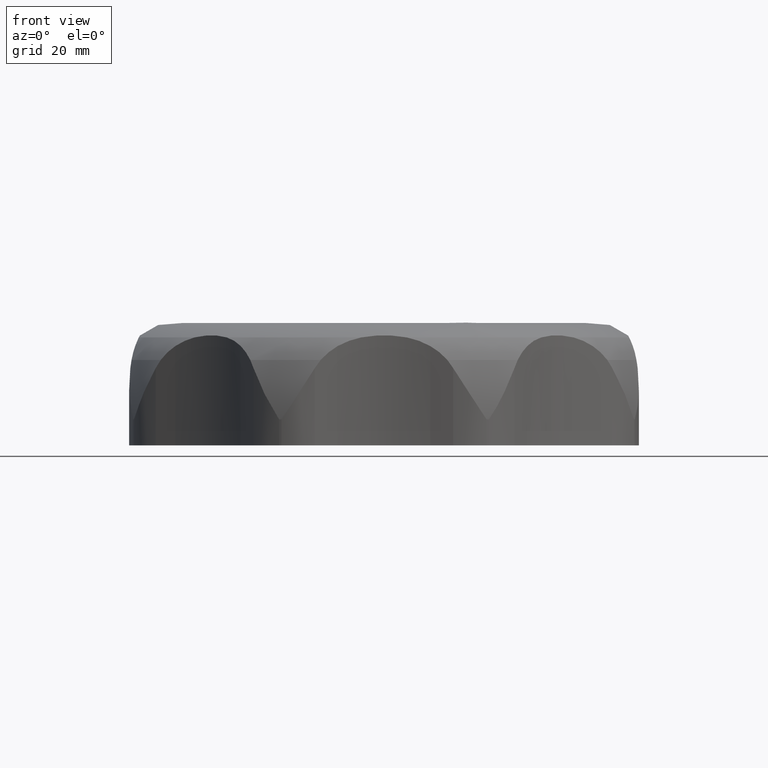
[diagram: clean part render]
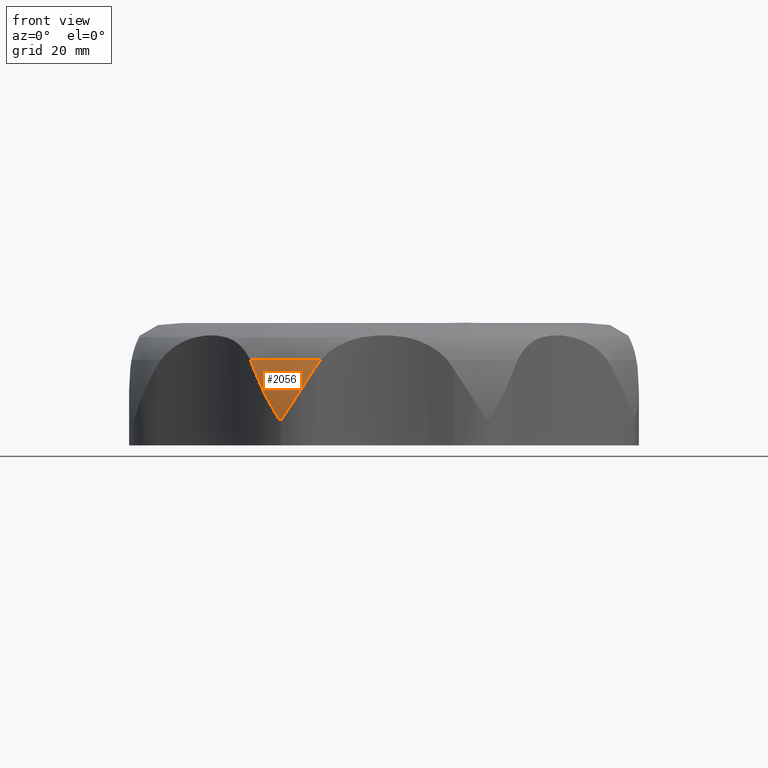
[diagram: same view with one face highlighted and labeled with its STEP entity id]
A machine part, front view. The second image highlights one B-rep face of the part: STEP entity #2056.
In plain terms, the highlighted face is a freeform B-spline surface patch.
Its self-contained STEP definition (entity closure, byte-faithful):
#2056 = ADVANCED_FACE( '', ( #6350 ), #6351, .T. );
#6350 = FACE_OUTER_BOUND( '', #11272, .T. );
#6351 = ( B_SPLINE_SURFACE( 3, 3, ( ( #11274, #11275, #11276, #11277 ), ( #11278, #11279, #11280, #11281 ), ( #11282, #11283, #11284, #11285 ), ( #11286, #11287, #11288, #11289 ) ), .UNSPECIFIED., .F., .F., .F. )B_SPLINE_SURFACE_WITH_KNOTS( ( 4, 4 ), ( 4, 4 ), ( 5.34910763170350, 5.64646665586077 ), ( 0.0222292292235931, 0.338178846627953 ), .UNSPECIFIED. )RATIONAL_B_SPLINE_SURFACE( ( ( 1.00000000000000, 0.992645031382292, 0.992645031382292, 1.00000000000000 ), ( 0.991698605662999, 0.984404693540123, 0.984404693540123, 0.991698605662999 ), ( 0.991698605662999, 0.984404693540123, 0.984404693540123, 0.991698605662999 ), ( 1.00000000000000, 0.992645031382292, 0.992645031382292, 1.00000000000000 ) ) )BOUNDED_SURFACE(  )REPRESENTATION_ITEM( '' )GEOMETRIC_REPRESENTATION_ITEM(  )SURFACE(  ) );
#11272 = EDGE_LOOP( '', ( #30086, #30087, #30088, #30089, #30090, #30091 ) );
#11274 = CARTESIAN_POINT( '', ( -29.6827843334104, -49.3639309143618, 18.9051987331990 ) );
#11275 = CARTESIAN_POINT( '', ( -24.7717339039393, -52.3169706753441, 18.9051987331990 ) );
#11276 = CARTESIAN_POINT( '', ( -19.4774237104494, -54.5099457608978, 18.9051987331990 ) );
#11277 = CARTESIAN_POINT( '', ( -13.9166722089172, -55.8944683822218, 18.9051987331990 ) );
#11278 = CARTESIAN_POINT( '', ( -30.4512240267274, -50.6418839361091, 14.6651041067951 ) );
#11279 = CARTESIAN_POINT( '', ( -25.4130343759657, -53.6713731616292, 14.6651041067951 ) );
#11280 = CARTESIAN_POINT( '', ( -19.9816629804095, -55.9211208559539, 14.6651041067951 ) );
#11281 = CARTESIAN_POINT( '', ( -14.2769525385551, -57.3414865480145, 14.6651041067951 ) );
#11282 = CARTESIAN_POINT( '', ( -30.8663544938579, -51.3322663298121, 10.2432148301802 ) );
#11283 = CARTESIAN_POINT( '', ( -25.7594810351357, -54.4030554806244, 10.2432148301802 ) );
#11284 = CARTESIAN_POINT( '', ( -20.2540657278268, -56.6834731674082, 10.2432148301802 ) );
#11285 = CARTESIAN_POINT( '', ( -14.4715850423693, -58.1232021885988, 10.2432148301802 ) );
#11286 = CARTESIAN_POINT( '', ( -30.9178372496748, -51.4178846859907, 5.74965444315344 ) );
#11287 = CARTESIAN_POINT( '', ( -25.8024459104457, -54.4937956819515, 5.74965444315344 ) );
#11288 = CARTESIAN_POINT( '', ( -20.2878479848269, -56.7780169337773, 5.74965444315344 ) );
#11289 = CARTESIAN_POINT( '', ( -14.4957225568649, -58.2201473145990, 5.74965444315344 ) );
#30086 = ORIENTED_EDGE( '', *, *, #37198, .F. );
#30087 = ORIENTED_EDGE( '', *, *, #37196, .F. );
#30088 = ORIENTED_EDGE( '', *, *, #37203, .T. );
#30089 = ORIENTED_EDGE( '', *, *, #37205, .F. );
#30090 = ORIENTED_EDGE( '', *, *, #37257, .F. );
#30091 = ORIENTED_EDGE( '', *, *, #37206, .F. );
#37196 = EDGE_CURVE( '', #48407, #48405, #48409, .T. );
#37198 = EDGE_CURVE( '', #48405, #48412, #48413, .T. );
#37203 = EDGE_CURVE( '', #48407, #48417, #48419, .T. );
#37205 = EDGE_CURVE( '', #48420, #48417, #48422, .T. );
#37206 = EDGE_CURVE( '', #48412, #48423, #48424, .T. );
#37257 = EDGE_CURVE( '', #48423, #48420, #48502, .T. );
#48405 = VERTEX_POINT( '', #75079 );
#48407 = VERTEX_POINT( '', #75082 );
#48409 = B_SPLINE_CURVE_WITH_KNOTS( '', 3, ( #75085, #75086, #75087, #75088, #75089, #75090, #75091, #75092, #75093, #75094, #75095, #75096, #75097, #75098 ), .UNSPECIFIED., .F., .F., ( 4, 2, 2, 2, 2, 2, 4 ), ( 3.12551144157876E-007, 0.000426683360056060, 0.000853054168967963, 0.00170579578679177, 0.00341127902243937, 0.00682224549373458, 0.0136441784363250 ), .UNSPECIFIED. );
#48412 = VERTEX_POINT( '', #75102 );
#48413 = B_SPLINE_CURVE_WITH_KNOTS( '', 3, ( #75103, #75104, #75105, #75106 ), .UNSPECIFIED., .F., .F., ( 4, 4 ), ( 3.68082554245148E-007, 0.00221763291842306 ), .UNSPECIFIED. );
#48417 = VERTEX_POINT( '', #75125 );
#48419 = CIRCLE( '', #75128, 59.9975960000000 );
#48420 = VERTEX_POINT( '', #75129 );
#48422 = B_SPLINE_CURVE_WITH_KNOTS( '', 3, ( #75132, #75133, #75134, #75135, #75136, #75137, #75138, #75139, #75140, #75141, #75142, #75143, #75144, #75145 ), .UNSPECIFIED., .F., .F., ( 4, 2, 2, 2, 2, 2, 4 ), ( 3.66671776299814E-007, 0.00680483717724937, 0.0102070724299859, 0.0119081900563542, 0.0127587488695383, 0.0131840282761304, 0.0136093076827224 ), .UNSPECIFIED. );
#48423 = VERTEX_POINT( '', #75146 );
#48424 = CIRCLE( '', #75147, 57.6009145856352 );
#48502 = B_SPLINE_CURVE_WITH_KNOTS( '', 3, ( #75426, #75427, #75428, #75429 ), .UNSPECIFIED., .F., .F., ( 4, 4 ), ( 2.56028141075159E-007, 0.00221752086403909 ), .UNSPECIFIED. );
#75079 = CARTESIAN_POINT( '', ( -28.8828348418969, -50.5118820505311, 17.1142435614363 ) );
#75082 = CARTESIAN_POINT( '', ( -23.2207867404174, -55.3218454946621, 5.74965444315344 ) );
#75085 = CARTESIAN_POINT( '', ( -23.2207867404191, -55.3218454946615, 5.74965444315217 ) );
#75086 = CARTESIAN_POINT( '', ( -23.3295441090287, -55.2740024693811, 5.84061401074822 ) );
#75087 = CARTESIAN_POINT( '', ( -23.4152633677957, -55.2347377492459, 5.94842263200228 ) );
#75088 = CARTESIAN_POINT( '', ( -23.5809825747188, -55.1571536673895, 6.16781642026173 ) );
#75089 = CARTESIAN_POINT( '', ( -23.6584771019797, -55.1198356431650, 6.28125742140223 ) );
#75090 = CARTESIAN_POINT( '', ( -23.8847410079456, -55.0083022965663, 6.62547899576394 ) );
#75091 = CARTESIAN_POINT( '', ( -24.0270711017191, -54.9345943266289, 6.86032041777973 ) );
#75092 = CARTESIAN_POINT( '', ( -24.4453737252470, -54.7085480085220, 7.56839975020135 ) );
#75093 = CARTESIAN_POINT( '', ( -24.7115504405062, -54.5517382014736, 8.04601633246108 ) );
#75094 = CARTESIAN_POINT( '', ( -25.4911587274866, -54.0550325957118, 9.48127223376051 ) );
#75095 = CARTESIAN_POINT( '', ( -25.9836967507986, -53.6894239724581, 10.4432154328071 ) );
#75096 = CARTESIAN_POINT( '', ( -27.3769683144545, -52.4947720410533, 13.3127360711706 ) );
#75097 = CARTESIAN_POINT( '', ( -28.1963845466229, -51.5669643224077, 15.2134542894051 ) );
#75098 = CARTESIAN_POINT( '', ( -28.8828348418971, -50.5118820505311, 17.1142435614362 ) );
#75102 = CARTESIAN_POINT( '', ( -29.5957097293314, -49.4161848660820, 18.9051987331990 ) );
#75103 = CARTESIAN_POINT( '', ( -28.8828348418970, -50.5118820505310, 17.1142435614362 ) );
#75104 = CARTESIAN_POINT( '', ( -29.1056081655869, -50.1694768012512, 17.7311056222115 ) );
#75105 = CARTESIAN_POINT( '', ( -29.3434150215651, -49.8039648339609, 18.3278472384696 ) );
#75106 = CARTESIAN_POINT( '', ( -29.5957097293315, -49.4161848660821, 18.9051987331990 ) );
#75125 = CARTESIAN_POINT( '', ( -22.6988763284069, -55.5380278656607, 5.74965444315344 ) );
#75128 = AXIS2_PLACEMENT_3D( '', #79653, #79654, #79655 );
#75129 = CARTESIAN_POINT( '', ( -15.2940459518450, -56.1405427050252, 17.1142435614119 ) );
#75132 = CARTESIAN_POINT( '', ( -15.2940459518450, -56.1405427050255, 17.1142435614118 ) );
#75133 = CARTESIAN_POINT( '', ( -16.5251905176270, -56.4011403322678, 15.2139249482884 ) );
#75134 = CARTESIAN_POINT( '', ( -17.7608212962556, -56.4779007521181, 13.3129759701209 ) );
#75135 = CARTESIAN_POINT( '', ( -19.5916177089900, -56.3373293514738, 10.4420980317901 ) );
#75136 = CARTESIAN_POINT( '', ( -20.1985477185152, -56.2474883756976, 9.47993791987735 ) );
#75137 = CARTESIAN_POINT( '', ( -21.1004741168203, -56.0475364290523, 8.04557915939006 ) );
#75138 = CARTESIAN_POINT( '', ( -21.3994152410939, -55.9702393627767, 7.56821379207193 ) );
#75139 = CARTESIAN_POINT( '', ( -21.8548707345268, -55.8343434582245, 6.86039596760154 ) );
#75140 = CARTESIAN_POINT( '', ( -22.0075867569604, -55.7858362919649, 6.62562355106964 ) );
#75141 = CARTESIAN_POINT( '', ( -22.2464096613311, -55.7047242641009, 6.28144101875560 ) );
#75142 = CARTESIAN_POINT( '', ( -22.3275874692424, -55.6763187575307, 6.16800224754182 ) );
#75143 = CARTESIAN_POINT( '', ( -22.4996449229079, -55.6139940570682, 5.94856636842442 ) );
#75144 = CARTESIAN_POINT( '', ( -22.5880232216294, -55.5811474520019, 5.84071250537862 ) );
#75145 = CARTESIAN_POINT( '', ( -22.6988763283984, -55.5380278656643, 5.74965444314717 ) );
#75146 = CARTESIAN_POINT( '', ( -14.0151923755358, -55.8698464628137, 18.9051987331990 ) );
#75147 = AXIS2_PLACEMENT_3D( '', #79657, #79658, #79659 );
#75426 = CARTESIAN_POINT( '', ( -14.0151923755358, -55.8698464628136, 18.9051987331990 ) );
#75427 = CARTESIAN_POINT( '', ( -14.4677935191563, -55.9656490089912, 18.3278472384620 ) );
#75428 = CARTESIAN_POINT( '', ( -14.8944043503123, -56.0559501591932, 17.7311056221958 ) );
#75429 = CARTESIAN_POINT( '', ( -15.2940459518451, -56.1405427050253, 17.1142435614119 ) );
#79653 = CARTESIAN_POINT( '', ( 0.000000000000000, 0.000000000000000, 5.74965444315344 ) );
#79654 = DIRECTION( '', ( 2.34318281388423E-017, -5.65694372839885E-017, 1.00000000000000 ) );
#79655 = DIRECTION( '', ( 0.382683432365090, -0.923879532511287, -6.12303176911189E-017 ) );
#79657 = CARTESIAN_POINT( '', ( 0.000000000000000, 0.000000000000000, 18.9051987331990 ) );
#79658 = DIRECTION( '', ( 2.34318281388423E-017, -5.65694372839885E-017, 1.00000000000000 ) );
#79659 = DIRECTION( '', ( 0.382683432365090, -0.923879532511287, -6.12303176911189E-017 ) );